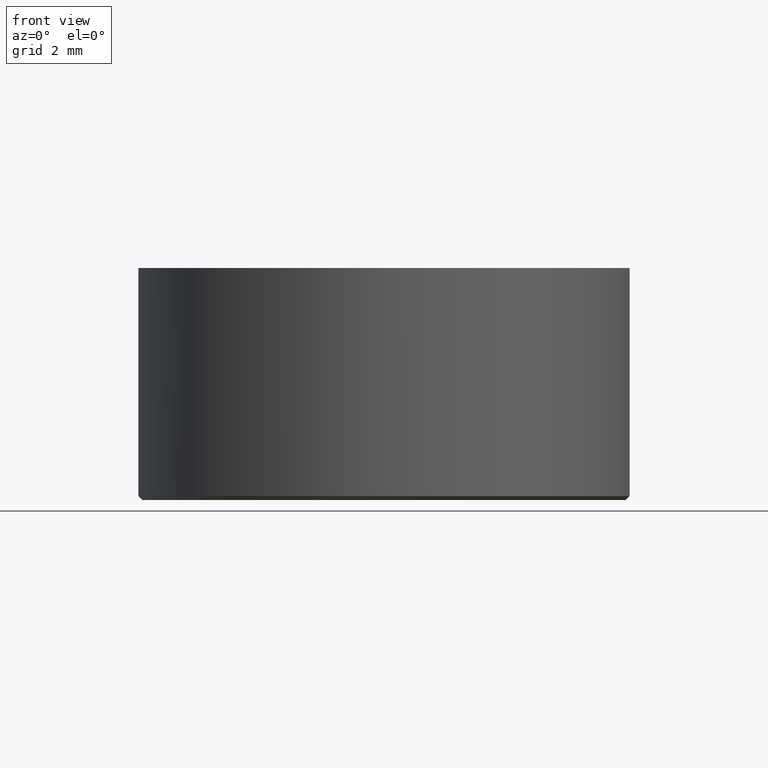
[diagram: clean part render]
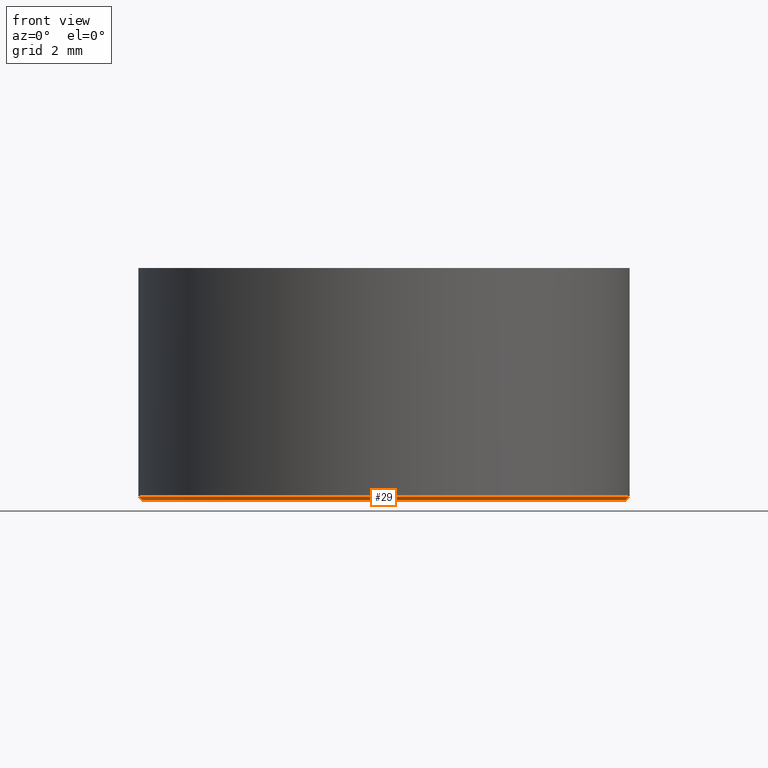
[diagram: same view with one face highlighted and labeled with its STEP entity id]
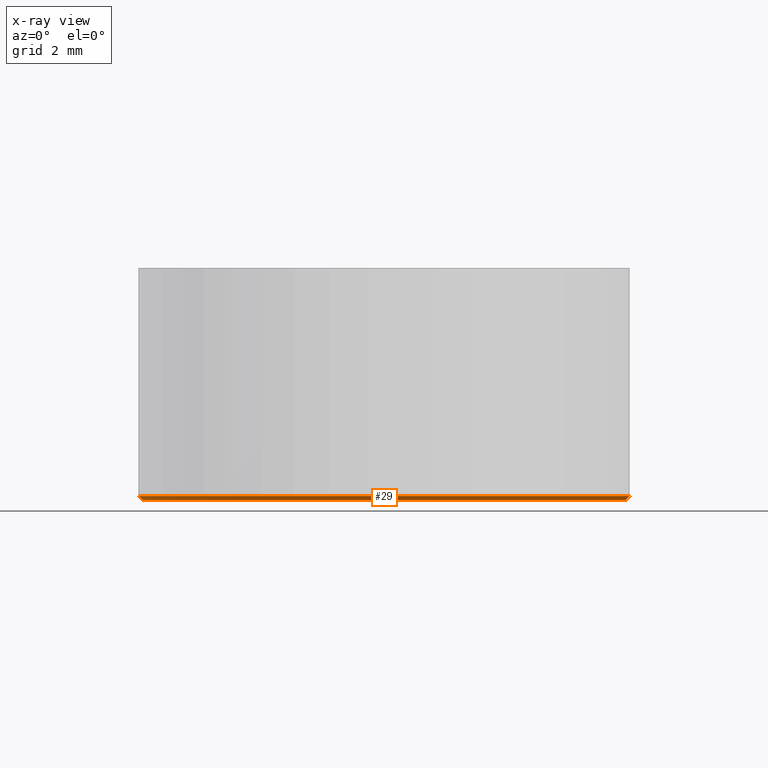
[diagram: x-ray of the same camera — body ghosted, the highlighted face saturated]
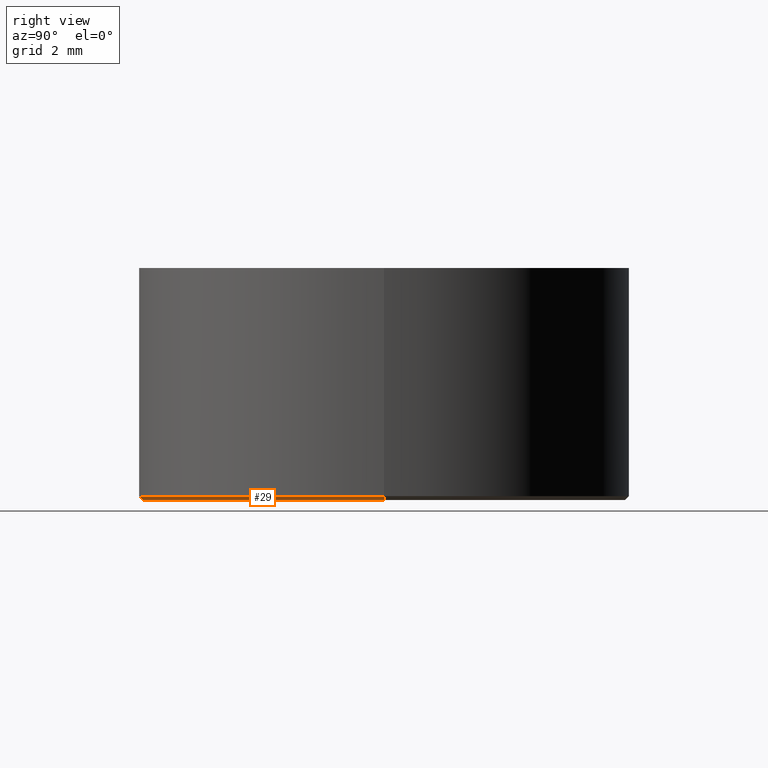
[diagram: same view with one face highlighted and labeled with its STEP entity id]
A machine part, front view. The second image highlights one B-rep face of the part: STEP entity #29.
The next image is the same camera in x-ray: the body ghosted, the highlighted face saturated — about 0% of this face is hidden behind the body in this view.
A second angle (right view) of the same face is appended — the face is thin or edge-on in the first view.
In plain terms, the highlighted conical surface has half-angle 45 deg.
Its self-contained STEP definition (entity closure, byte-faithful):
#9 = AXIS2_PLACEMENT_3D ( 'NONE', #14, #13, #12 ) ;
#12 = DIRECTION ( 'NONE',  ( 1.000000000000000000, 0.0000000000000000000, 0.0000000000000000000 ) ) ;
#13 = DIRECTION ( 'NONE',  ( 0.0000000000000000000, 0.0000000000000000000, 1.000000000000000000 ) ) ;
#14 = CARTESIAN_POINT ( 'NONE',  ( -0.04150932971835186200, -0.003652676017679375900, -0.08978774678871552500 ) ) ;
#15 = CONICAL_SURFACE ( 'NONE', #9, 0.2500000000000001100, 0.7853981633974569400 ) ;
#19 = CARTESIAN_POINT ( 'NONE',  ( 0.2084906702816482500, -0.003652676017679375900, -0.08978774678871552500 ) ) ;
#24 = EDGE_CURVE ( 'NONE', #46, #35, #71, .T. ) ;
#27 = EDGE_CURVE ( 'NONE', #46, #45, #103, .T. ) ;
#29 = ADVANCED_FACE ( 'NONE', ( #98 ), #15, .T. ) ;
#30 = EDGE_LOOP ( 'NONE', ( #31, #32, #33, #34 ) ) ;
#31 = ORIENTED_EDGE ( 'NONE', *, *, #48, .F. ) ;
#32 = ORIENTED_EDGE ( 'NONE', *, *, #27, .F. ) ;
#33 = ORIENTED_EDGE ( 'NONE', *, *, #24, .T. ) ;
#34 = ORIENTED_EDGE ( 'NONE', *, *, #77, .F. ) ;
#35 = VERTEX_POINT ( 'NONE', #19 ) ;
#38 = VERTEX_POINT ( 'NONE', #142 ) ;
#45 = VERTEX_POINT ( 'NONE', #166 ) ;
#46 = VERTEX_POINT ( 'NONE', #165 ) ;
#48 = EDGE_CURVE ( 'NONE', #45, #38, #163, .T. ) ;
#68 = DIRECTION ( 'NONE',  ( 0.7071067811865536800, 0.0000000000000000000, 0.7071067811865414700 ) ) ;
#69 = VECTOR ( 'NONE', #68, 39.37007874015748100 ) ;
#70 = CARTESIAN_POINT ( 'NONE',  ( 0.2084906702816482500, -0.003652676017679375900, -0.08978774678871552500 ) ) ;
#71 = LINE ( 'NONE', #70, #69 ) ;
#77 = EDGE_CURVE ( 'NONE', #38, #35, #191, .T. ) ;
#98 = FACE_OUTER_BOUND ( 'NONE', #30, .T. ) ;
#99 = DIRECTION ( 'NONE',  ( 1.000000000000000000, 0.0000000000000000000, 0.0000000000000000000 ) ) ;
#100 = DIRECTION ( 'NONE',  ( 0.0000000000000000000, 0.0000000000000000000, -1.000000000000000000 ) ) ;
#101 = CARTESIAN_POINT ( 'NONE',  ( -0.04150932971835186200, -0.003652676017679375900, -0.09372475466273134900 ) ) ;
#102 = AXIS2_PLACEMENT_3D ( 'NONE', #101, #100, #99 ) ;
#103 = CIRCLE ( 'NONE', #102, 0.2460629921259842000 ) ;
#142 = CARTESIAN_POINT ( 'NONE',  ( -0.2915093297183519700, -0.003652676017679345500, -0.08978774678871552500 ) ) ;
#160 = DIRECTION ( 'NONE',  ( -0.7071067811865536800, 8.659274570719430600E-017, 0.7071067811865414700 ) ) ;
#161 = VECTOR ( 'NONE', #160, 39.37007874015748100 ) ;
#162 = CARTESIAN_POINT ( 'NONE',  ( -0.2915093297183519700, -0.003652676017679345500, -0.08978774678871552500 ) ) ;
#163 = LINE ( 'NONE', #162, #161 ) ;
#165 = CARTESIAN_POINT ( 'NONE',  ( 0.2045536624076323400, -0.003652676017679375900, -0.09372475466273134900 ) ) ;
#166 = CARTESIAN_POINT ( 'NONE',  ( -0.2875723218443360700, -0.003652676017679345900, -0.09372475466273134900 ) ) ;
#187 = DIRECTION ( 'NONE',  ( 1.000000000000000000, 0.0000000000000000000, 0.0000000000000000000 ) ) ;
#188 = DIRECTION ( 'NONE',  ( 0.0000000000000000000, 0.0000000000000000000, 1.000000000000000000 ) ) ;
#189 = CARTESIAN_POINT ( 'NONE',  ( -0.04150932971835186200, -0.003652676017679375900, -0.08978774678871552500 ) ) ;
#190 = AXIS2_PLACEMENT_3D ( 'NONE', #189, #188, #187 ) ;
#191 = CIRCLE ( 'NONE', #190, 0.2500000000000001100 ) ;